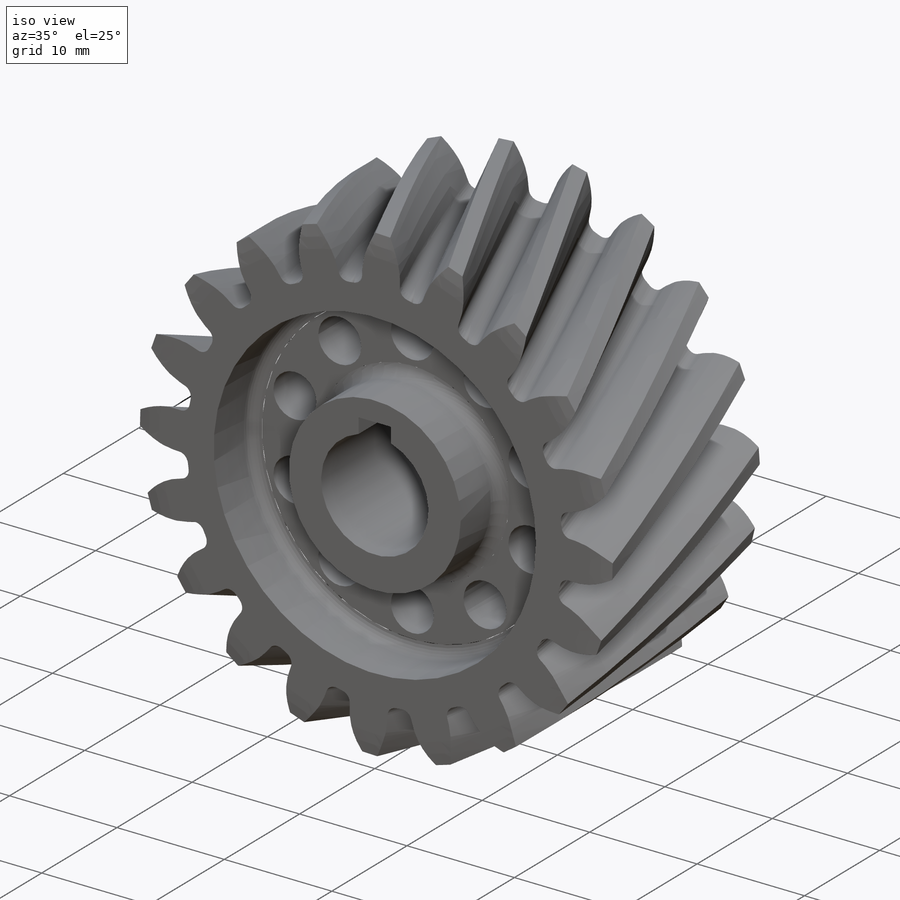
[diagram: iso view]
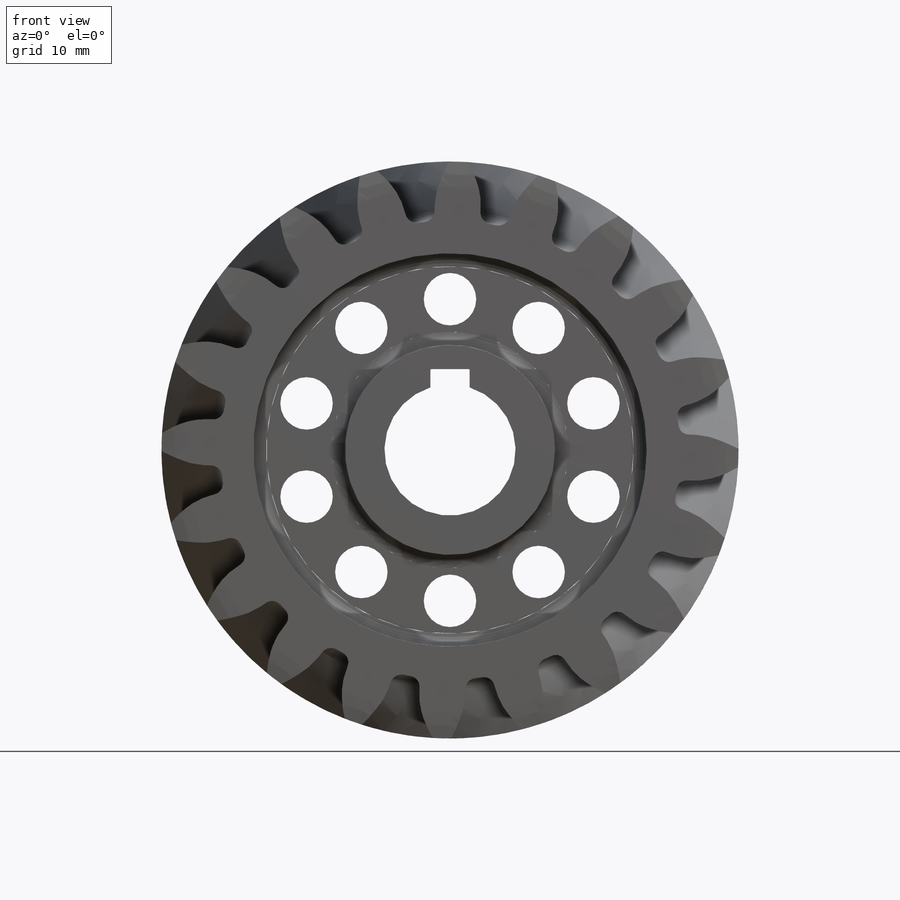
[diagram: front view]
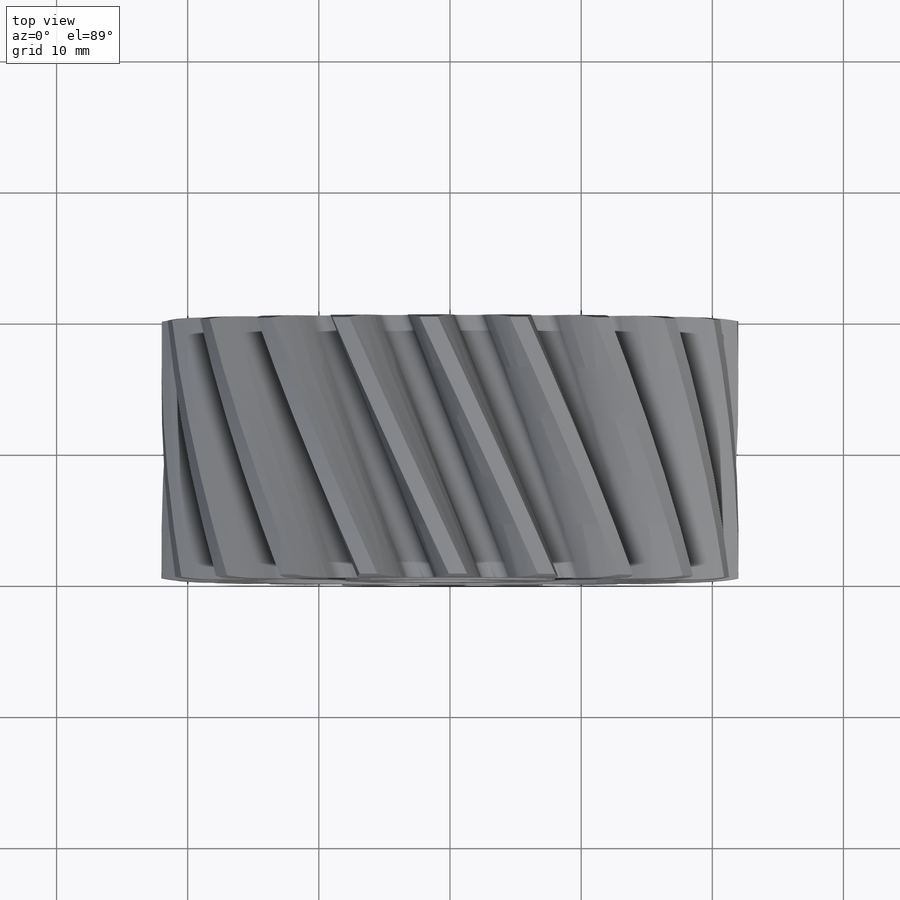
[diagram: top view]
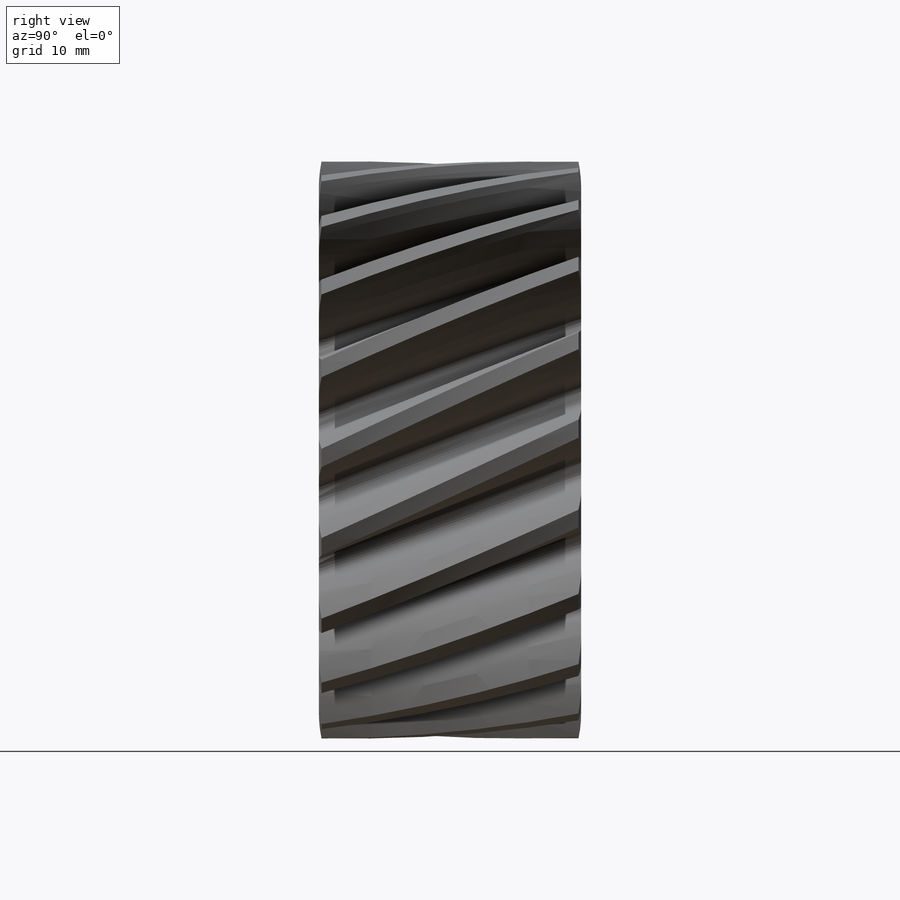
[diagram: right view]
SOLIDWORKS PART (.sldprt)
format: sldprt  version: not decoded by parser v0  size: 1,335,808 bytes
history: native  units: mm
features: sketch x12, plane x2, pattern_circular x2, cut_extrude x2, cut_revolve x2, material x1, extrude x1, helix x1, sweep x1, fillet x1, mirror x1 (+11 scaffold rows collapsed)
feature tree (37):
  scaffold x11  (default folders/planes/origin — collapsed)
  material  "Plain Carbon Steel"
  plane  "Plane1"  Offset=20mm
  plane  "Plane2"  Offset=10mm
  sketch  "Sketch1"  dims[c1.D1=40.0mm c1.D9=~37.587705mm c1.D10=~18.793852mm c1.D18=44.0mm c1.D19=35.0mm c1.D20=35.0mm c1.D2=~60.451368mm c2.D2=20.0deg c2.D3=~6.840403mm c2.D4=~18.793852mm c3.D4=4.0deg c3.D5=~18.793852mm c4.D5=4.0deg c4.D6=~18.793852mm c5.D6=4.0deg c5.D7=~18.793852mm c6.D7=4.0deg c6.D8=~11.031401mm c6.D10=~1.639553mm c6.D11=~8.480476mm c6.D3=~8.152461mm c7.D8=~18.793852mm c8.D8=20.0deg c9.D8=~6.840403mm c9.D10=~1.639553mm c10.D8=~6.840403mm c10.D10=~9.46452mm c10.D11=~10.776578mm c10.D12=~12.088637mm c10.D13=~18.793852mm c11.D13=4.0deg c11.D14=~13.400695mm c11.D15=~18.254688mm c12.D15=4.0deg c12.D16=~5.528344mm c12.D17=~8.274354mm c12.D10=~1.640073mm c13.D17=~6.840403mm]
  sketch  "Sketch2"  dims[c1.D2=~43.821563mm c1.D1=~48.317158mm c2.D1=4.5deg c2.D2=~33.887034mm]
  sketch  "Sketch3"  dims[D1=~1.295937mm]
  sketch  "Sketch4"
  extrude  "Boss-Extrude2"  [1 undecoded]
  sketch  "Sketch9"  dims[c1.D1=40.0mm c1.D9=~37.587705mm c1.D10=~18.793852mm c1.D18=44.0mm c1.D19=35.0mm c1.D20=35.0mm c1.D2=~60.451368mm c2.D2=20.0deg c2.D3=~6.840403mm c2.D4=~18.793852mm c3.D4=4.0deg c3.D5=~18.793852mm c4.D5=4.0deg c4.D6=~18.793852mm c5.D6=4.0deg c5.D7=~18.793852mm c6.D7=4.0deg c6.D8=~11.031401mm c6.D10=~1.639553mm c6.D11=~8.480476mm c6.D3=~8.152461mm c7.D8=~18.793852mm c8.D8=20.0deg c9.D8=~6.840403mm c9.D10=~1.639553mm c10.D8=~6.840403mm c10.D10=~9.46452mm c10.D11=~10.776578mm c10.D12=~12.088637mm c10.D13=~18.793852mm c11.D13=4.0deg c11.D14=~13.400695mm c11.D15=~18.254688mm c12.D15=4.0deg c12.D16=~5.528344mm c12.D17=~8.274354mm c12.D2=20.0mm c13.D2=4.5deg c13.D3=~20.482165mm c14.D3=12.16deg c14.D10=~6.840403mm c14.D11=~5.467409mm c15.D3=22.0mm c16.D3=~24.320615deg c16.D10=~1.640073mm c16.D17=~6.840403mm c16.D11=~6.840403mm]
  sketch  "Sketch10"
  sketch  "Sketch12"
  sketch  "Sketch13"
  helix  "Helix/Spiral1"  Pitch=20mm
  sweep  "Sweep1"
  fillet  "Fillet1"  Radius=0.8mm
  pattern_circular  "CirPattern1"  Count=20 Angle=360deg
  sketch  "Sketch5"  dims[D1=10.0mm D4=0.1mm D2=3.0mm D3=1.4mm]
  cut_extrude  "Cut-Extrude2"  [1 undecoded]
  sketch  "Sketch6"  dims[D4=1.0mm D1=30.0mm D2=16.0mm D3=5.0mm]
  cut_revolve  "Cut-Revolve1"  Angle=360deg
  sketch  "Sketch7"  dims[D5=10.0mm D1=2.0mm D2=36.0mm D3=2.0mm D4=6.0mm]
  cut_revolve  "Cut-Revolve2"  Angle=360deg
  mirror  "Mirror1"
  sketch  "Sketch14"  dims[D2=4.0mm D1=11.5mm]
  cut_extrude  "Cut-Extrude3"  Depth=10mm
  pattern_circular  "CirPattern2"  Count=10 Angle=36deg
decode coverage: 15 of 23 modeling features carry decoded parameters
note: ~ marks probable driven/reference dimensions
note: 2 parameter values undecoded
note: suppression state not decoded; provenance and decode notes live in map.json
